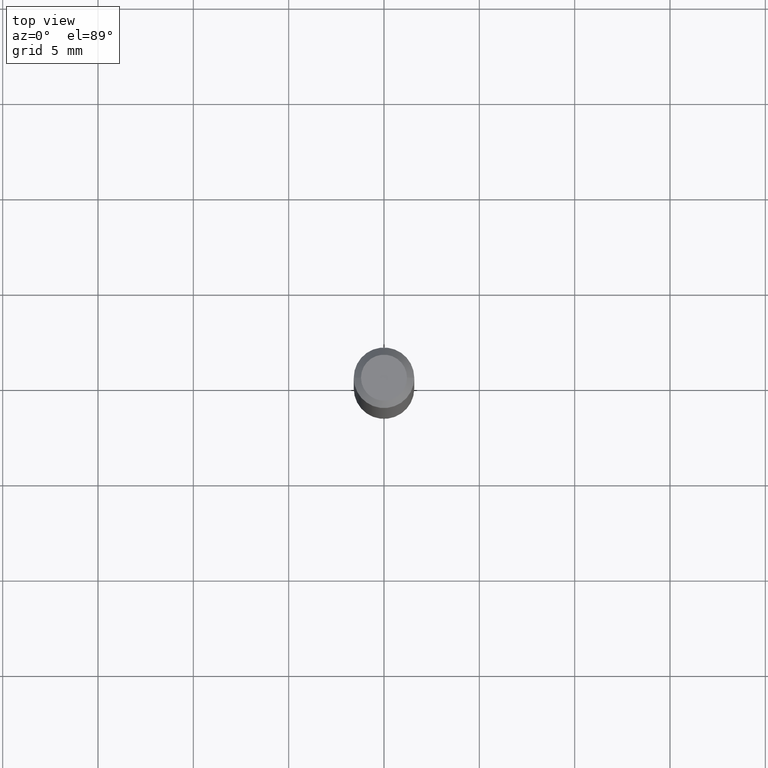
[diagram: clean part render]
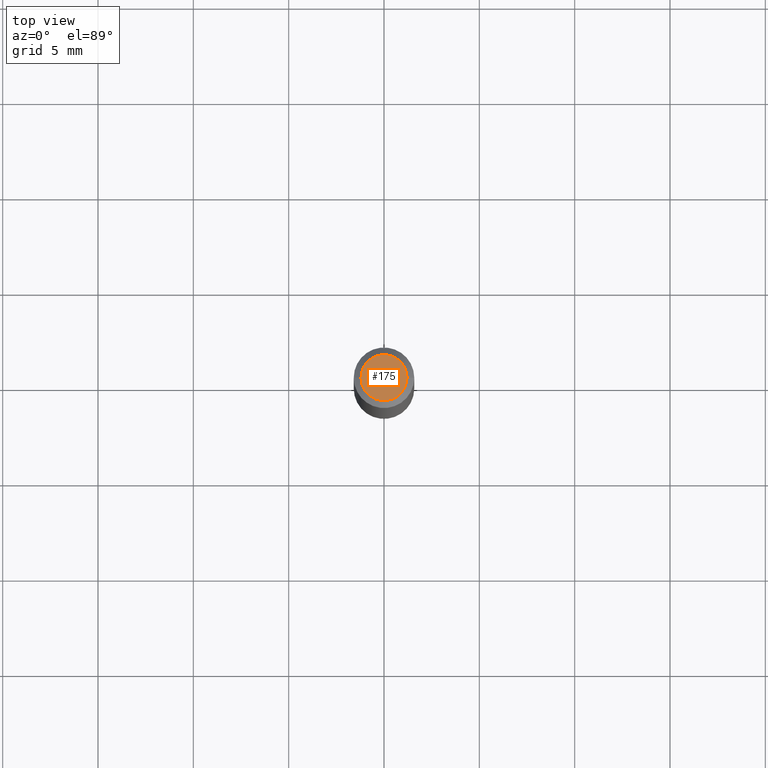
[diagram: same view with one face highlighted and labeled with its STEP entity id]
A machine part, top view. The second image highlights one B-rep face of the part: STEP entity #175.
In plain terms, the highlighted planar face has unit normal (0, -0, -1).
Its self-contained STEP definition (entity closure, byte-faithful):
#21 = DIRECTION ( 'NONE',  ( 1.000000000000000000, -6.982962677686267499E-15, 4.852736867747366768E-29 ) ) ;
#53 = CARTESIAN_POINT ( 'NONE',  ( 3.316907271900976096E-16, 0.04749999999999999362, -2.653275547260257586E-16 ) ) ;
#67 = CARTESIAN_POINT ( 'NONE',  ( -0.04749999999999999362, 3.578768372314206562E-16, -1.989643822619551895E-16 ) ) ;
#74 = ORIENTED_EDGE ( 'NONE', *, *, #169, .T. ) ;
#93 = AXIS2_PLACEMENT_3D ( 'NONE', #295, #372, #119 ) ;
#119 = DIRECTION ( 'NONE',  ( 1.000000000000000000, -6.982962677686267499E-15, 4.852736867747366768E-29 ) ) ;
#139 = DIRECTION ( 'NONE',  ( 2.438088387897960049E-29, -3.491481338843145188E-15, -1.000000000000000000 ) ) ;
#151 = EDGE_LOOP ( 'NONE', ( #447, #74 ) ) ;
#166 = AXIS2_PLACEMENT_3D ( 'NONE', #241, #209, #21 ) ;
#168 = PLANE ( 'NONE',  #423 ) ;
#169 = EDGE_CURVE ( 'NONE', #298, #406, #303, .T. ) ;
#175 = ADVANCED_FACE ( 'NONE', ( #308 ), #168, .F. ) ;
#209 = DIRECTION ( 'NONE',  ( -2.445468806185136597E-29, 3.491481338843145583E-15, 1.000000000000000000 ) ) ;
#218 = EDGE_CURVE ( 'NONE', #406, #298, #432, .T. ) ;
#238 = DIRECTION ( 'NONE',  ( -1.000000000000000000, 6.982962677686265922E-15, -4.876176775795935793E-29 ) ) ;
#241 = CARTESIAN_POINT ( 'NONE',  ( 4.865611903635008365E-45, -6.946804277620623666E-31, -1.989643822619527736E-16 ) ) ;
#295 = CARTESIAN_POINT ( 'NONE',  ( 4.865611903635008365E-45, -6.946804277620623666E-31, -1.989643822619527736E-16 ) ) ;
#298 = VERTEX_POINT ( 'NONE', #304 ) ;
#303 = CIRCLE ( 'NONE', #166, 0.04749999999999999362 ) ;
#304 = CARTESIAN_POINT ( 'NONE',  ( 0.04749999999999999362, -4.035134999187581581E-16, -1.989643822619502098E-16 ) ) ;
#308 = FACE_OUTER_BOUND ( 'NONE', #151, .T. ) ;
#372 = DIRECTION ( 'NONE',  ( -2.445468806185136597E-29, 3.491481338843145583E-15, 1.000000000000000000 ) ) ;
#406 = VERTEX_POINT ( 'NONE', #67 ) ;
#423 = AXIS2_PLACEMENT_3D ( 'NONE', #53, #139, #238 ) ;
#432 = CIRCLE ( 'NONE', #93, 0.04749999999999999362 ) ;
#447 = ORIENTED_EDGE ( 'NONE', *, *, #218, .T. ) ;